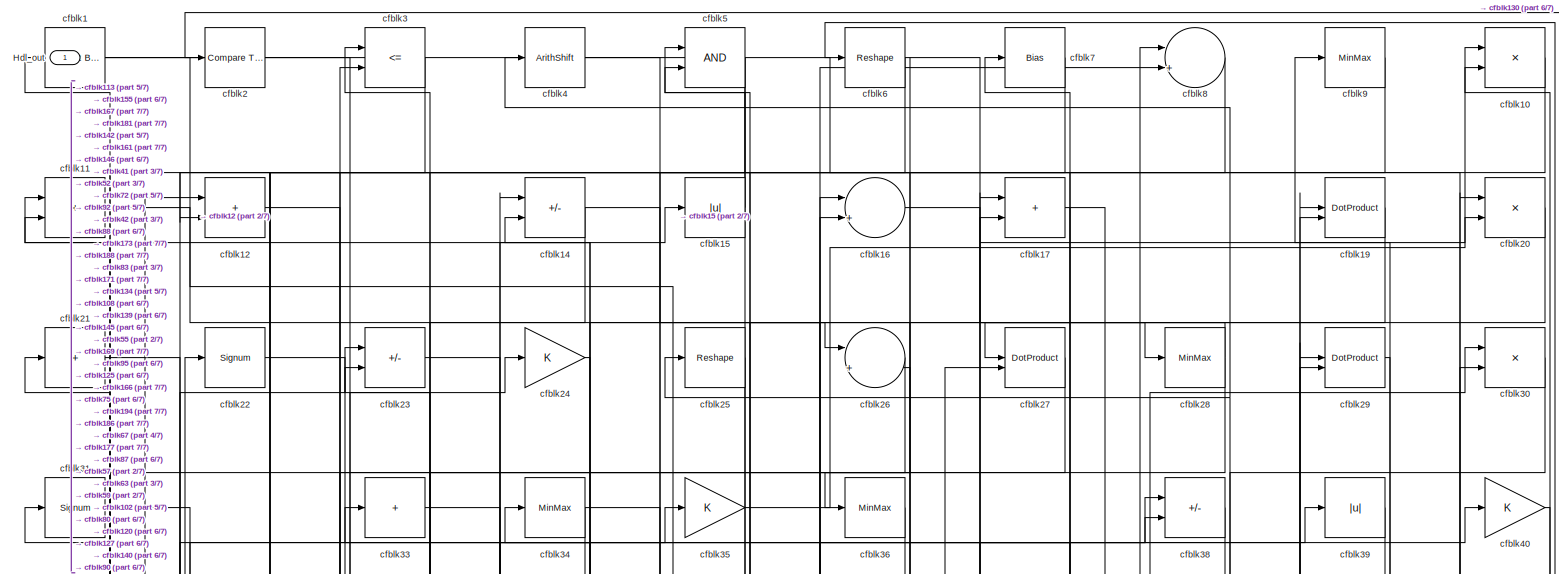
[diagram: root canvas - part 1/7, full width, top band]
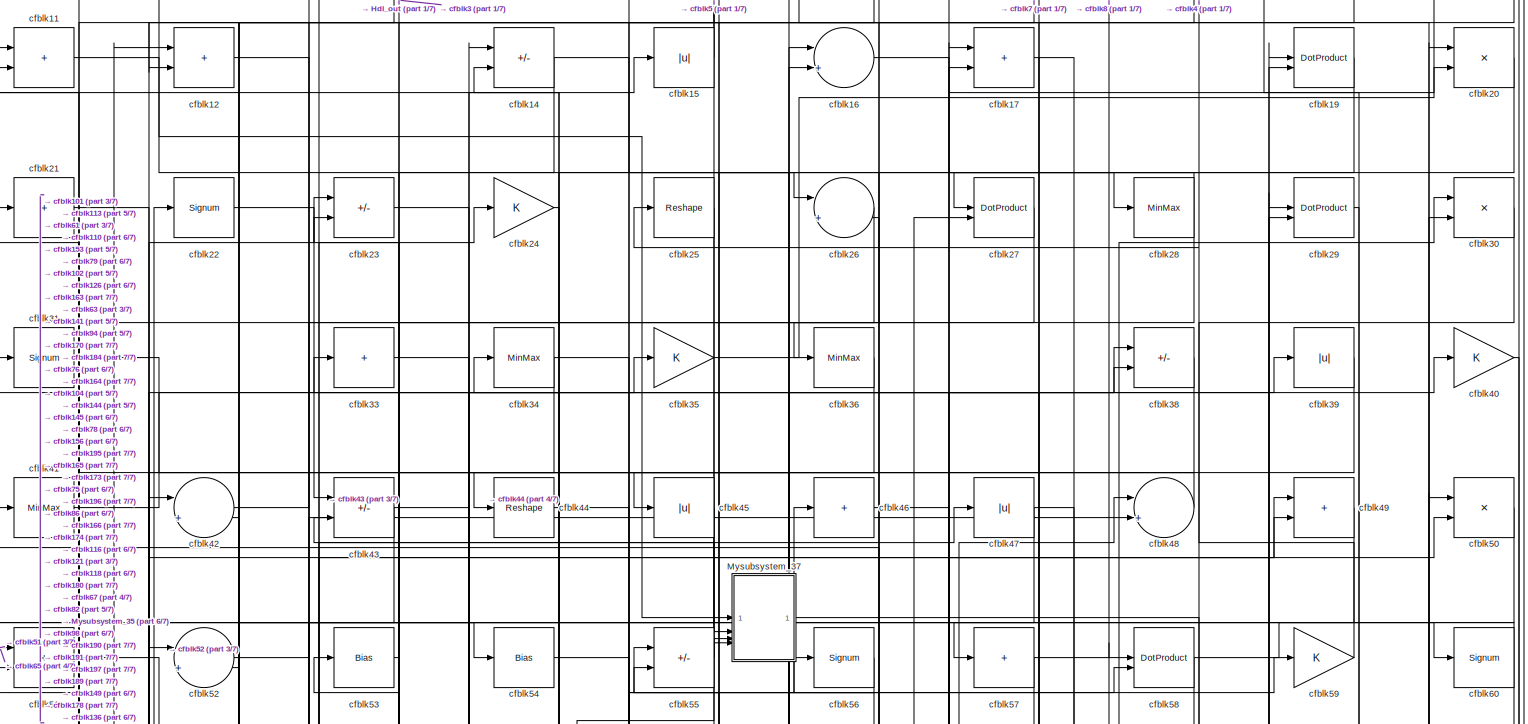
[diagram: root canvas - part 2/7, full width, top band]
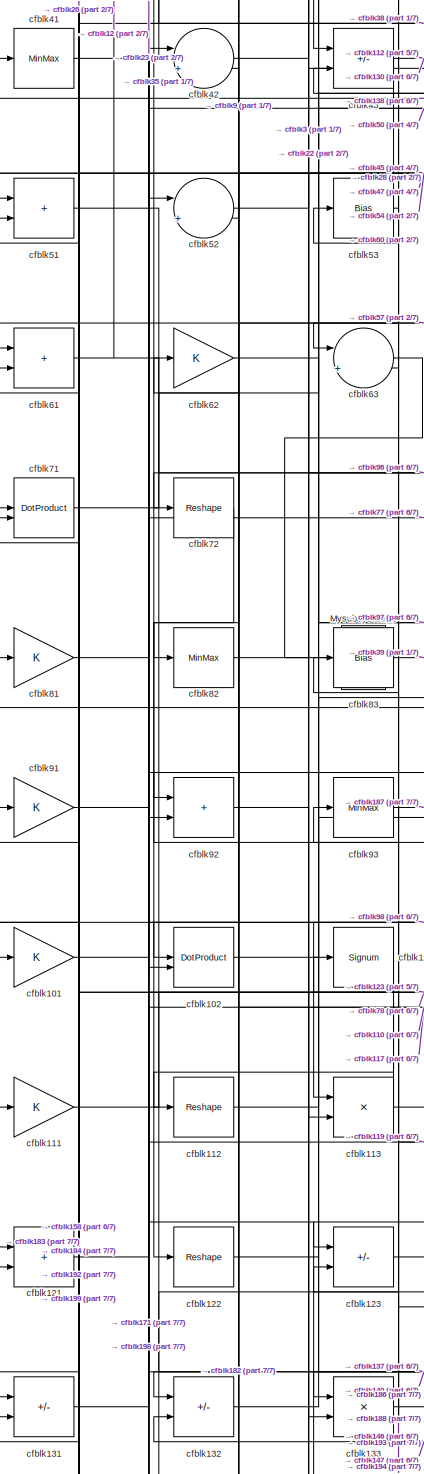
[diagram: root canvas - part 3/7, middle left region]
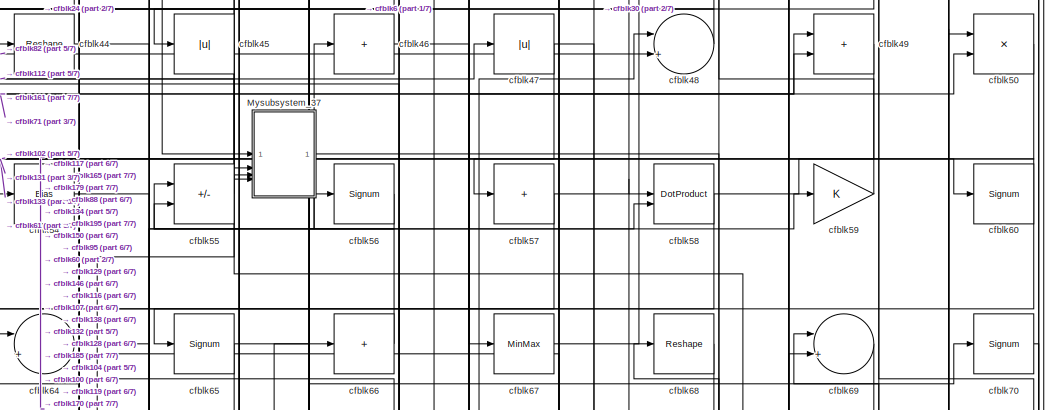
[diagram: root canvas - part 4/7, top center region]
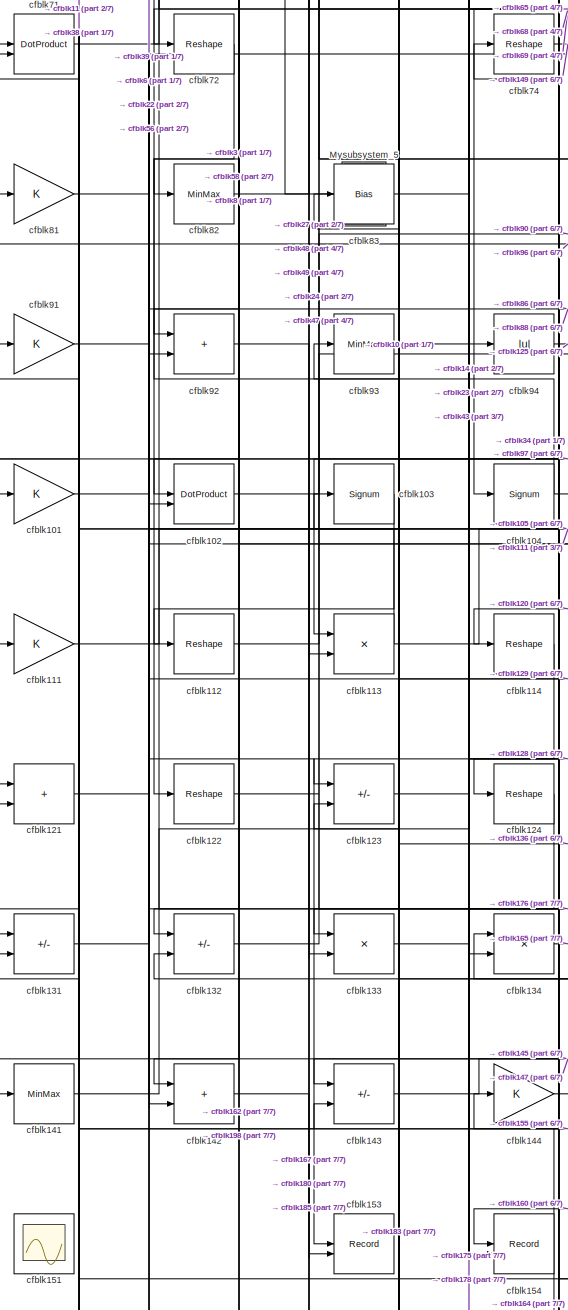
[diagram: root canvas - part 5/7, middle left region]
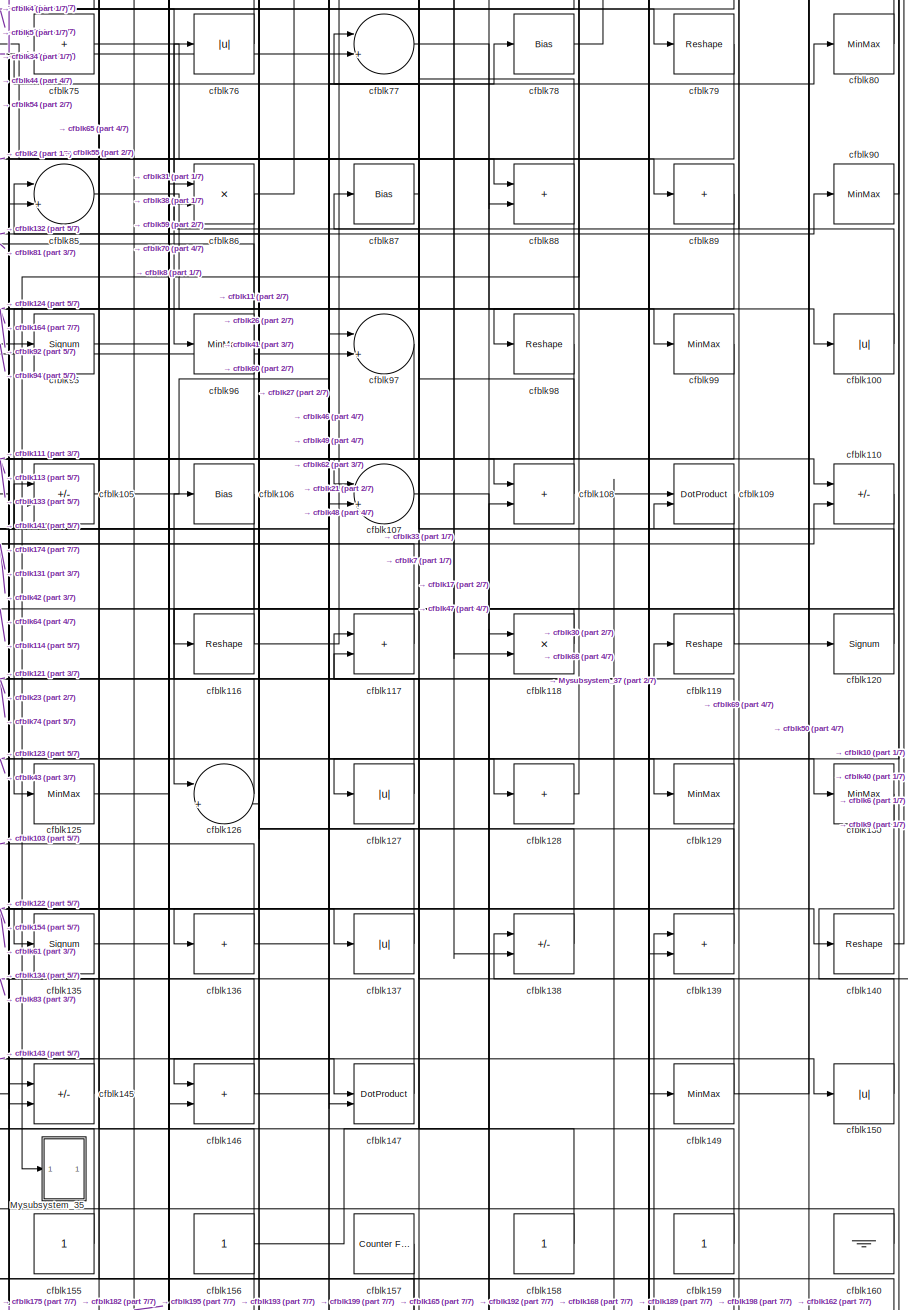
[diagram: root canvas - part 6/7, middle right region]
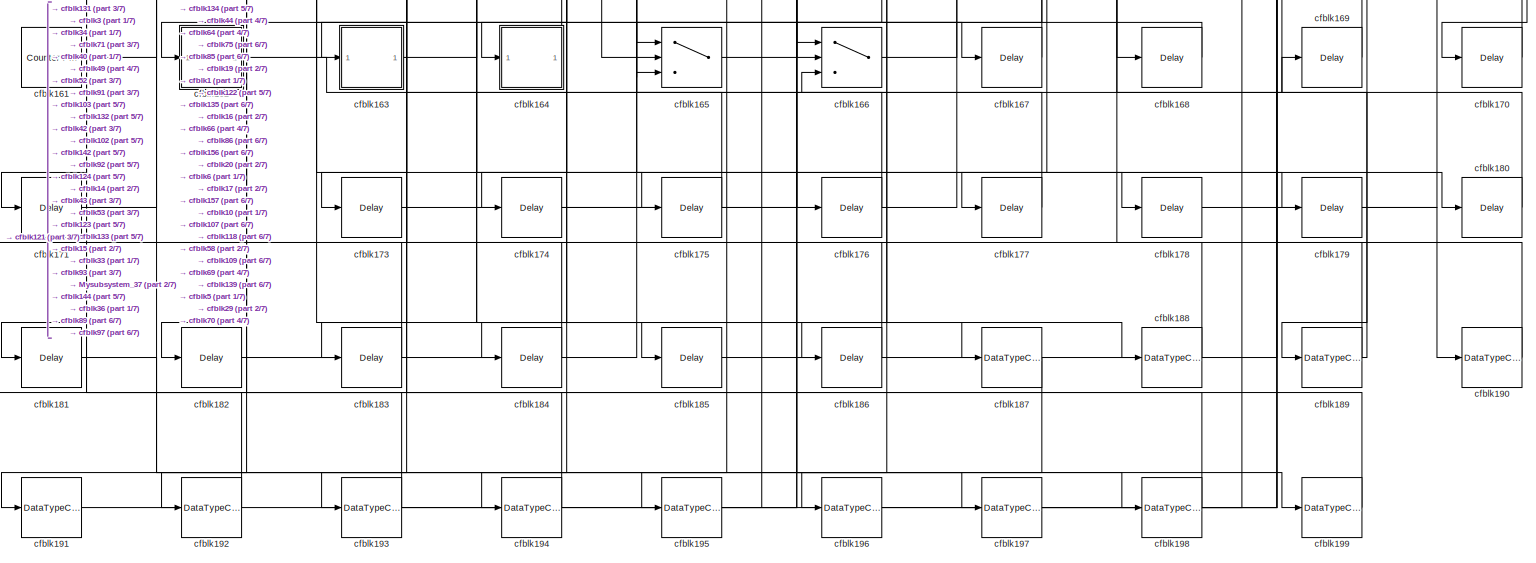
[diagram: root canvas - part 7/7, full width, bottom band]
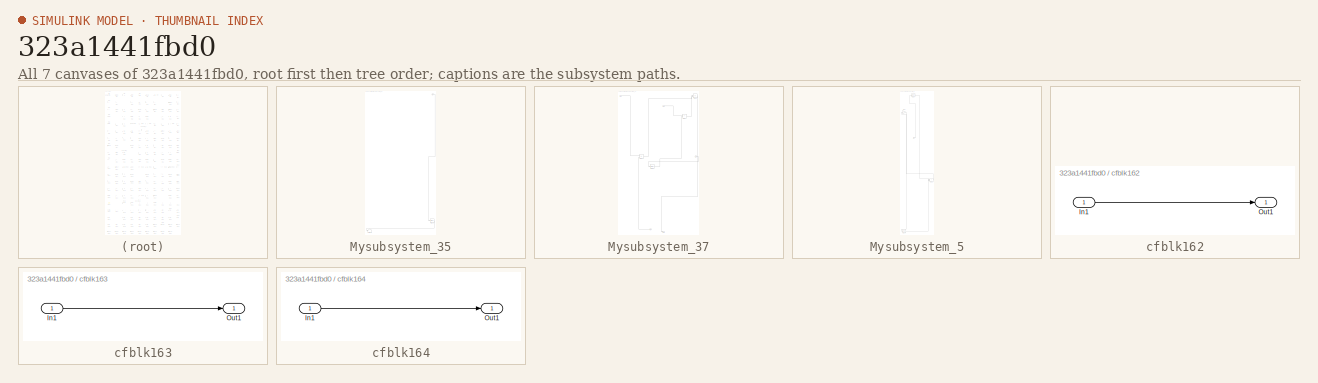
[diagram: thumbnail index - all 7 canvases of the model, root first then tree order]
MODEL slx_323a1441fbd0
KIND model
CONFIG AbsTol = auto
CONFIG EnableMultiTasking = off
CONFIG FixedStep = auto
CONFIG MaxStep = auto
CONFIG MinStep = auto
CONFIG RelTol = 1e-3
CONFIG SampleTimeConstraint = Unconstrained
CONFIG SolverName = VariableStepAuto
CONFIG StartTime = 0.0
CONFIG StopTime = 10.0
BLOCK [Outport] Hdl_out
  OutDataTypeStr = uint8
BLOCK [SubSystem] Mysubsystem_35
  RTWFcnName = Mysubsystem_35
  RTWFcnNameOpts = User specified
  RTWFileNameOpts = Use function name
  RTWSystemCode = Reusable function
  TreatAsAtomicUnit = on
BLOCK [Inport] Mysubsystem_35/In1
BLOCK [MinMax] Mysubsystem_35/cfblk148
BLOCK [Terminator] Mysubsystem_35/cfblk152
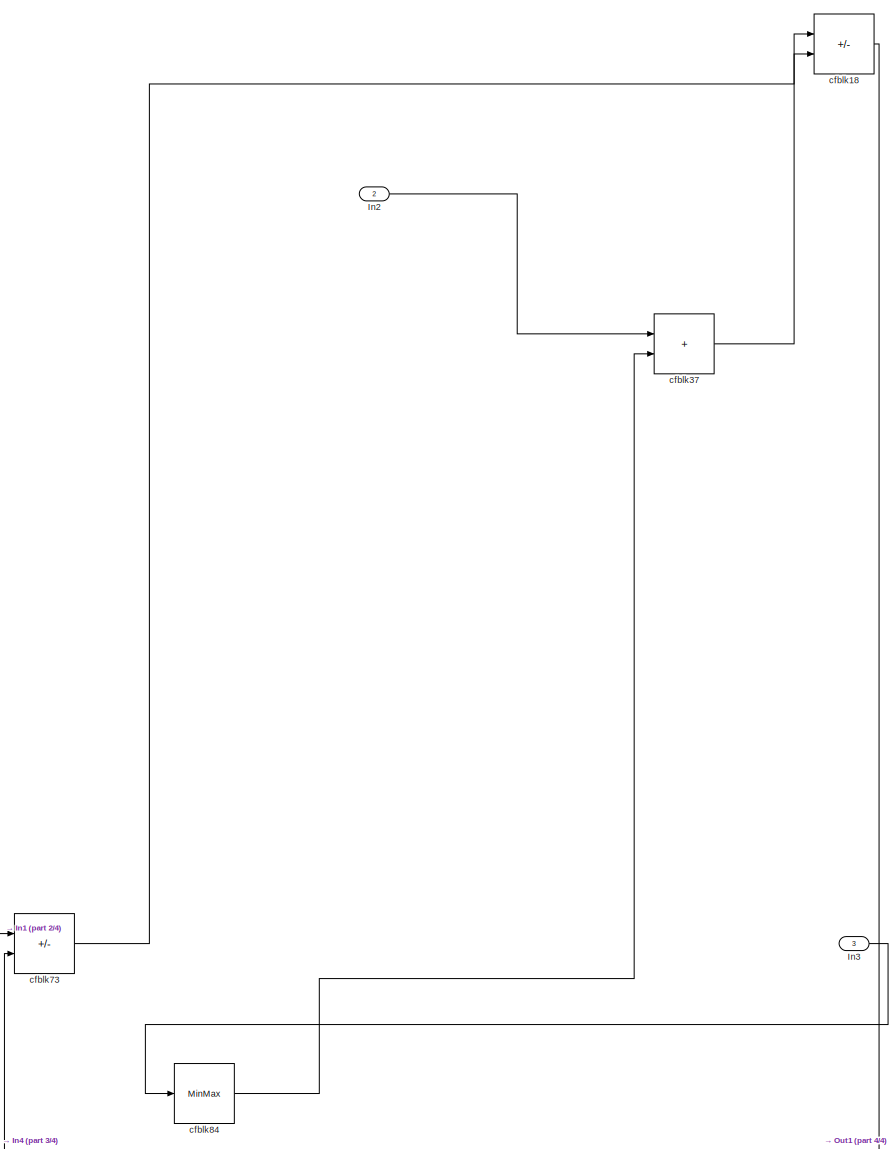
[diagram: Mysubsystem_37 - part 1/4, full width, top band]
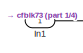
[diagram: Mysubsystem_37 - part 2/4, top left region]
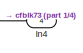
[diagram: Mysubsystem_37 - part 3/4, bottom center region]
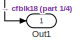
[diagram: Mysubsystem_37 - part 4/4, bottom center region]
BLOCK [SubSystem] Mysubsystem_37
  RTWFcnName = Mysubsystem_37
  RTWFcnNameOpts = User specified
  RTWFileNameOpts = Use function name
  RTWSystemCode = Reusable function
  TreatAsAtomicUnit = on
BLOCK [Inport] Mysubsystem_37/In1
BLOCK [Inport] Mysubsystem_37/In2
  Port = 2
BLOCK [Inport] Mysubsystem_37/In3
  Port = 3
BLOCK [Inport] Mysubsystem_37/In4
  Port = 4
BLOCK [Outport] Mysubsystem_37/Out1
BLOCK [Sum] Mysubsystem_37/cfblk18
  IconShape = rectangular
  Inputs = +-
BLOCK [Sum] Mysubsystem_37/cfblk37
  IconShape = rectangular
BLOCK [Sum] Mysubsystem_37/cfblk73
  IconShape = rectangular
  Inputs = +-
BLOCK [MinMax] Mysubsystem_37/cfblk84
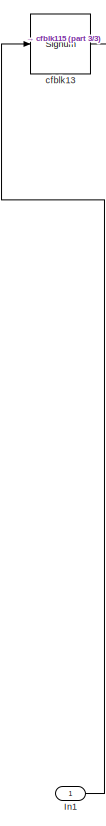
[diagram: Mysubsystem_5 - part 1/3, top center region]
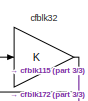
[diagram: Mysubsystem_5 - part 2/3, top left region]
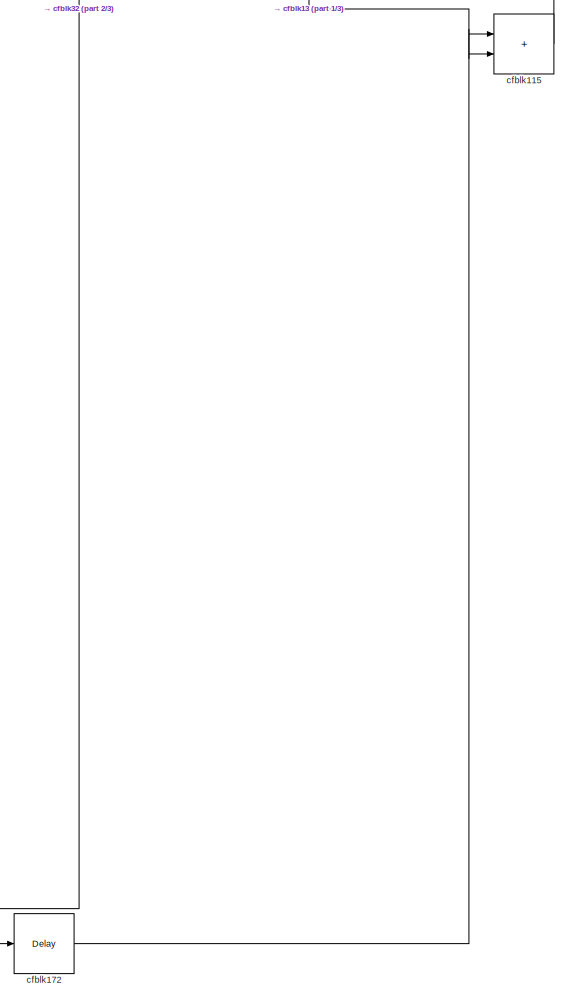
[diagram: Mysubsystem_5 - part 3/3, full width, bottom band]
BLOCK [SubSystem] Mysubsystem_5
  RTWFcnName = Mysubsystem_5
  RTWFcnNameOpts = User specified
  RTWFileNameOpts = Use function name
  RTWSystemCode = Reusable function
  TreatAsAtomicUnit = on
BLOCK [Inport] Mysubsystem_5/In1
BLOCK [Sum] Mysubsystem_5/cfblk115
  IconShape = rectangular
BLOCK [Signum] Mysubsystem_5/cfblk13
BLOCK [Delay] Mysubsystem_5/cfblk172
  InputPortMap = u0
  SampleTime = 1
BLOCK [Gain] Mysubsystem_5/cfblk32
BLOCK [Reference] cfblk1  REF=simulink/Logic and Bit
Operations/Extract Bits
  LibrarySourceBlock = hdlsllib/Logic and Bit\nOperations/Extract Bits
  SourceBlock = simulink/Logic and Bit\nOperations/Extract Bits
  SourceType = Extract Bits
BLOCK [Product] cfblk10
  Inputs = */
  OutDataTypeStr = uint8
  RndMeth = Zero
  SaturateOnIntegerOverflow = on
BLOCK [Abs] cfblk100
  OutDataTypeStr = uint8
  SaturateOnIntegerOverflow = off
BLOCK [Gain] cfblk101
  OutDataTypeStr = uint8
BLOCK [DotProduct] cfblk102
  OutDataTypeStr = uint8
BLOCK [Signum] cfblk103
BLOCK [Signum] cfblk104
BLOCK [Sum] cfblk105
  IconShape = rectangular
  Inputs = +-
  OutDataTypeStr = uint8
BLOCK [Bias] cfblk106
  Bias = 0.0
  SaturateOnIntegerOverflow = off
BLOCK [Sum] cfblk107
  Inputs = |++
  OutDataTypeStr = uint8
BLOCK [Sum] cfblk108
  IconShape = rectangular
  OutDataTypeStr = uint8
BLOCK [DotProduct] cfblk109
  OutDataTypeStr = uint8
BLOCK [Sum] cfblk11
  IconShape = rectangular
  OutDataTypeStr = uint8
BLOCK [Sum] cfblk110
  IconShape = rectangular
  Inputs = +-
  OutDataTypeStr = uint8
BLOCK [Gain] cfblk111
  OutDataTypeStr = uint8
BLOCK [Reshape] cfblk112
BLOCK [Product] cfblk113
  Inputs = */
  OutDataTypeStr = uint8
  RndMeth = Zero
  SaturateOnIntegerOverflow = on
BLOCK [Reshape] cfblk114
BLOCK [Reshape] cfblk116
BLOCK [Sum] cfblk117
  IconShape = rectangular
  OutDataTypeStr = uint8
BLOCK [Product] cfblk118
  Inputs = */
  OutDataTypeStr = uint8
  RndMeth = Zero
  SaturateOnIntegerOverflow = on
BLOCK [Reshape] cfblk119
BLOCK [Sum] cfblk12
  IconShape = rectangular
  OutDataTypeStr = uint8
BLOCK [Signum] cfblk120
BLOCK [Sum] cfblk121
  IconShape = rectangular
  OutDataTypeStr = uint8
BLOCK [Reshape] cfblk122
BLOCK [Sum] cfblk123
  IconShape = rectangular
  Inputs = +-
  OutDataTypeStr = uint8
BLOCK [Reshape] cfblk124
BLOCK [MinMax] cfblk125
  OutDataTypeStr = uint8
BLOCK [Sum] cfblk126
  Inputs = |++
  OutDataTypeStr = uint8
BLOCK [Abs] cfblk127
  OutDataTypeStr = uint8
  SaturateOnIntegerOverflow = off
BLOCK [Sum] cfblk128
  IconShape = rectangular
  Inputs = +
  OutDataTypeStr = uint8
BLOCK [MinMax] cfblk129
  OutDataTypeStr = uint8
BLOCK [MinMax] cfblk130
  OutDataTypeStr = uint8
BLOCK [Sum] cfblk131
  IconShape = rectangular
  Inputs = +-
  OutDataTypeStr = uint8
BLOCK [Sum] cfblk132
  IconShape = rectangular
  Inputs = +-
  OutDataTypeStr = uint8
BLOCK [Product] cfblk133
  Inputs = */
  OutDataTypeStr = uint8
  RndMeth = Zero
  SaturateOnIntegerOverflow = on
BLOCK [Product] cfblk134
  Inputs = */
  OutDataTypeStr = uint8
  RndMeth = Zero
  SaturateOnIntegerOverflow = on
BLOCK [Signum] cfblk135
BLOCK [Sum] cfblk136
  IconShape = rectangular
  Inputs = +
  OutDataTypeStr = uint8
BLOCK [Abs] cfblk137
  OutDataTypeStr = uint8
  SaturateOnIntegerOverflow = off
BLOCK [Sum] cfblk138
  IconShape = rectangular
  Inputs = +-
  OutDataTypeStr = uint8
BLOCK [Sum] cfblk139
  IconShape = rectangular
  OutDataTypeStr = uint8
BLOCK [Sum] cfblk14
  IconShape = rectangular
  Inputs = +-
  OutDataTypeStr = uint8
BLOCK [Reshape] cfblk140
BLOCK [MinMax] cfblk141
  OutDataTypeStr = uint8
BLOCK [Sum] cfblk142
  IconShape = rectangular
  OutDataTypeStr = uint8
BLOCK [Sum] cfblk143
  IconShape = rectangular
  Inputs = +-
  OutDataTypeStr = uint8
BLOCK [Gain] cfblk144
  OutDataTypeStr = uint8
BLOCK [Sum] cfblk145
  IconShape = rectangular
  Inputs = +-
  OutDataTypeStr = uint8
BLOCK [Sum] cfblk146
  IconShape = rectangular
  OutDataTypeStr = uint8
BLOCK [DotProduct] cfblk147
  OutDataTypeStr = uint8
BLOCK [MinMax] cfblk149
  OutDataTypeStr = uint8
BLOCK [Abs] cfblk15
  OutDataTypeStr = uint8
  SaturateOnIntegerOverflow = off
BLOCK [Abs] cfblk150
  OutDataTypeStr = uint8
  SaturateOnIntegerOverflow = off
BLOCK [Scope] cfblk151
  Floating = on
  NumInputPorts = 1
  ScopeSpecificationString = Simulink.scopes.TimeScopeBlockCfg('CurrentConfiguration', extmgr.ConfigurationSet(extmgr.Configuration('Core','General UI',true,'FigureColor',[0.156862745098039 0.156862745098039 0.156862745098039]),extmgr.Configuration('Core','Source UI',true),extmgr.Configuration('Sources','WiredSimulink',true,'DataLoggingVariableName','ScopeData1','DataLoggingSaveFormat','StructureWithTime','DataLoggingLimitDat...<+2713ch>
BLOCK [Record] cfblk153
  CompatibilityTag = XY
  FileSettingsInternal = {"entries":[{"content":{"excelSettings":{"content":{},"type":"Streamout.ExcelSettings"}},"type":"Streamout.FileSettingStorage","uuid":""}],"packageUris":["http:\/\/schema.mathworks.com\/mf0\/streamout_blocks\/R2020a"],"version":"1.0"}
  Layout = [1 1]
  SignalsInternal = {"entries":[{"content":{"signals":[{"content":{"blockPath":[],"dimensions":[1],"domain":"","lineColor":"#a2142f","plots":[1],"port":1,"signalID":23088,"signalName":"cfblk114"},"type":"RecordBlkView.Signal","uuid":""},{"content":{"blockPath":[],"dimensions":[1],"domain":"","lineColor":"#139fff","plots":[1],"port":2,"signalID":23091,"signalName":"cfblk27"},"type":"RecordBlkView.Signal","uuid":""}]},...<+143ch>
  VisualizationBindings = {"xyplotplugin":{"info":[{"series":[{"bindingParametersList":[{"parameter":"X-Axis","signalID":23088,"signalName":"cfblk114"},{"parameter":"Y-Axis","signalID":23091,"signalName":"cfblk27"}],"seriesID":1655}],"subplotID":1}]}}
  st = -1
BLOCK [Record] cfblk154
  CompatibilityTag = XY
  FileSettingsInternal = {"entries":[{"content":{"excelSettings":{"content":{},"type":"Streamout.ExcelSettings"}},"type":"Streamout.FileSettingStorage","uuid":""}],"packageUris":["http:\/\/schema.mathworks.com\/mf0\/streamout_blocks\/R2020a"],"version":"1.0"}
  Layout = [1 1]
  SignalsInternal = {"entries":[{"content":{"signals":[{"content":{"blockPath":[],"dimensions":[1],"domain":"","lineColor":"#a2142f","plots":[1],"port":1,"signalID":23080,"signalName":"cfblk160"},"type":"RecordBlkView.Signal","uuid":""},{"content":{"blockPath":[],"dimensions":[1],"domain":"","lineColor":"#139fff","plots":[1],"port":2,"signalID":23083,"signalName":"cfblk129"},"type":"RecordBlkView.Signal","uuid":""}]}...<+144ch>
  VisualizationBindings = {"xyplotplugin":{"info":[{"series":[{"bindingParametersList":[{"parameter":"X-Axis","signalID":23080,"signalName":"cfblk160"},{"parameter":"Y-Axis","signalID":23083,"signalName":"cfblk129"}],"seriesID":2661}],"subplotID":1}]}}
  st = -1
BLOCK [Constant] cfblk155
  OutDataTypeStr = uint8
  SampleTime = -1
BLOCK [Constant] cfblk156
  OutDataTypeStr = uint8
  SampleTime = -1
BLOCK [Reference] cfblk157  REF=hdlsllib/Sources/Counter
Free-Running
  SourceBlock = hdlsllib/Sources/Counter\nFree-Running
  SourceType = Counter Free-Running
BLOCK [Constant] cfblk158
  OutDataTypeStr = uint8
  SampleTime = -1
BLOCK [Constant] cfblk159
  OutDataTypeStr = uint8
  SampleTime = -1
BLOCK [Sum] cfblk16
  Inputs = |++
  OutDataTypeStr = uint8
BLOCK [Ground] cfblk160
BLOCK [Reference] cfblk161  REF=hdlsllib/Sources/Counter
Free-Running
  SourceBlock = hdlsllib/Sources/Counter\nFree-Running
  SourceType = Counter Free-Running
BLOCK [SubSystem] cfblk162
  LibrarySourceBlock = hdlsllib/Ports &\nSubsystems/Subsystem
BLOCK [Inport] cfblk162/In1
BLOCK [Outport] cfblk162/Out1
BLOCK [SubSystem] cfblk163
  LibrarySourceBlock = hdlsllib/Ports &\nSubsystems/Subsystem
BLOCK [Inport] cfblk163/In1
BLOCK [Outport] cfblk163/Out1
BLOCK [SubSystem] cfblk164
  LibrarySourceBlock = hdlsllib/Ports &\nSubsystems/Subsystem
BLOCK [Inport] cfblk164/In1
BLOCK [Outport] cfblk164/Out1
BLOCK [Switch] cfblk165
  InputSameDT = off
  OutDataTypeStr = uint8
  SaturateOnIntegerOverflow = off
BLOCK [Switch] cfblk166
  InputSameDT = off
  OutDataTypeStr = uint8
  SaturateOnIntegerOverflow = off
BLOCK [Delay] cfblk167
  InputPortMap = u0
  SampleTime = 1
BLOCK [Delay] cfblk168
  InputPortMap = u0
  SampleTime = 1
BLOCK [Delay] cfblk169
  InputPortMap = u0
  SampleTime = 1
BLOCK [Sum] cfblk17
  IconShape = rectangular
  OutDataTypeStr = uint8
BLOCK [Delay] cfblk170
  InputPortMap = u0
  SampleTime = 1
BLOCK [Delay] cfblk171
  InputPortMap = u0
  SampleTime = 1
BLOCK [Delay] cfblk173
  InputPortMap = u0
  SampleTime = 1
BLOCK [Delay] cfblk174
  InputPortMap = u0
  SampleTime = 1
BLOCK [Delay] cfblk175
  InputPortMap = u0
  SampleTime = 1
BLOCK [Delay] cfblk176
  InputPortMap = u0
  SampleTime = 1
BLOCK [Delay] cfblk177
  InputPortMap = u0
  SampleTime = 1
BLOCK [Delay] cfblk178
  InputPortMap = u0
  SampleTime = 1
BLOCK [Delay] cfblk179
  InputPortMap = u0
  SampleTime = 1
BLOCK [Delay] cfblk180
  InputPortMap = u0
  SampleTime = 1
BLOCK [Delay] cfblk181
  InputPortMap = u0
  SampleTime = 1
BLOCK [Delay] cfblk182
  InputPortMap = u0
  SampleTime = 1
BLOCK [Delay] cfblk183
  InputPortMap = u0
  SampleTime = 1
BLOCK [Delay] cfblk184
  InputPortMap = u0
  SampleTime = 1
BLOCK [Delay] cfblk185
  InputPortMap = u0
  SampleTime = 1
BLOCK [Delay] cfblk186
  InputPortMap = u0
  SampleTime = 1
BLOCK [DataTypeConversion] cfblk187
  OutDataTypeStr = uint8
  RndMeth = Floor
  SaturateOnIntegerOverflow = off
BLOCK [DataTypeConversion] cfblk188
  OutDataTypeStr = uint8
  RndMeth = Floor
  SaturateOnIntegerOverflow = off
BLOCK [DataTypeConversion] cfblk189
  OutDataTypeStr = uint8
  RndMeth = Floor
  SaturateOnIntegerOverflow = off
BLOCK [DotProduct] cfblk19
  OutDataTypeStr = uint8
BLOCK [DataTypeConversion] cfblk190
  OutDataTypeStr = uint8
  RndMeth = Floor
  SaturateOnIntegerOverflow = off
BLOCK [DataTypeConversion] cfblk191
  OutDataTypeStr = uint8
  RndMeth = Floor
  SaturateOnIntegerOverflow = off
BLOCK [DataTypeConversion] cfblk192
  OutDataTypeStr = uint8
  RndMeth = Floor
  SaturateOnIntegerOverflow = off
BLOCK [DataTypeConversion] cfblk193
  OutDataTypeStr = uint8
  RndMeth = Floor
  SaturateOnIntegerOverflow = off
BLOCK [DataTypeConversion] cfblk194
  OutDataTypeStr = uint8
  RndMeth = Floor
  SaturateOnIntegerOverflow = off
BLOCK [DataTypeConversion] cfblk195
  OutDataTypeStr = uint8
  RndMeth = Floor
  SaturateOnIntegerOverflow = off
BLOCK [DataTypeConversion] cfblk196
  OutDataTypeStr = uint8
  RndMeth = Floor
  SaturateOnIntegerOverflow = off
BLOCK [DataTypeConversion] cfblk197
  OutDataTypeStr = uint8
  RndMeth = Floor
  SaturateOnIntegerOverflow = off
BLOCK [DataTypeConversion] cfblk198
  OutDataTypeStr = uint8
  RndMeth = Floor
  SaturateOnIntegerOverflow = off
BLOCK [DataTypeConversion] cfblk199
  OutDataTypeStr = uint8
  RndMeth = Floor
  SaturateOnIntegerOverflow = off
BLOCK [Reference] cfblk2  REF=hdlsllib/Logic and Bit
Operations/Compare
To Zero
  SourceBlock = hdlsllib/Logic and Bit\nOperations/Compare\nTo Zero
  SourceType = Compare To Zero
BLOCK [Product] cfblk20
  Inputs = */
  OutDataTypeStr = uint8
  RndMeth = Zero
  SaturateOnIntegerOverflow = on
BLOCK [Sum] cfblk21
  IconShape = rectangular
  Inputs = +
  OutDataTypeStr = uint8
BLOCK [Signum] cfblk22
BLOCK [Sum] cfblk23
  IconShape = rectangular
  Inputs = +-
  OutDataTypeStr = uint8
BLOCK [Gain] cfblk24
  OutDataTypeStr = uint8
BLOCK [Reshape] cfblk25
BLOCK [Sum] cfblk26
  Inputs = |++
  OutDataTypeStr = uint8
BLOCK [DotProduct] cfblk27
  OutDataTypeStr = uint8
BLOCK [MinMax] cfblk28
  OutDataTypeStr = uint8
BLOCK [DotProduct] cfblk29
  OutDataTypeStr = uint8
BLOCK [RelationalOperator] cfblk3
  InputSameDT = off
  Operator = <=
  OutDataTypeStr = boolean
BLOCK [Product] cfblk30
  Inputs = */
  OutDataTypeStr = uint8
  RndMeth = Zero
  SaturateOnIntegerOverflow = on
BLOCK [Signum] cfblk31
BLOCK [Sum] cfblk33
  IconShape = rectangular
  Inputs = +
  OutDataTypeStr = uint8
BLOCK [MinMax] cfblk34
  OutDataTypeStr = uint8
BLOCK [Gain] cfblk35
  OutDataTypeStr = uint8
BLOCK [MinMax] cfblk36
  OutDataTypeStr = uint8
BLOCK [Sum] cfblk38
  IconShape = rectangular
  Inputs = +-
  OutDataTypeStr = uint8
BLOCK [Abs] cfblk39
  OutDataTypeStr = uint8
  SaturateOnIntegerOverflow = off
BLOCK [ArithShift] cfblk4
  BitShiftNumber = 8
  InputPortMap = u0
BLOCK [Gain] cfblk40
  OutDataTypeStr = uint8
BLOCK [MinMax] cfblk41
  OutDataTypeStr = uint8
BLOCK [Sum] cfblk42
  Inputs = |++
  OutDataTypeStr = uint8
BLOCK [Sum] cfblk43
  IconShape = rectangular
  Inputs = +-
  OutDataTypeStr = uint8
BLOCK [Reshape] cfblk44
BLOCK [Abs] cfblk45
  OutDataTypeStr = uint8
  SaturateOnIntegerOverflow = off
BLOCK [Sum] cfblk46
  IconShape = rectangular
  Inputs = +
  OutDataTypeStr = uint8
BLOCK [Abs] cfblk47
  OutDataTypeStr = uint8
  SaturateOnIntegerOverflow = off
BLOCK [Sum] cfblk48
  Inputs = |++
  OutDataTypeStr = uint8
BLOCK [Sum] cfblk49
  IconShape = rectangular
  OutDataTypeStr = uint8
BLOCK [Logic] cfblk5
  AllPortsSameDT = off
  OutDataTypeStr = boolean
BLOCK [Product] cfblk50
  Inputs = */
  OutDataTypeStr = uint8
  RndMeth = Zero
  SaturateOnIntegerOverflow = on
BLOCK [Sum] cfblk51
  IconShape = rectangular
  OutDataTypeStr = uint8
BLOCK [Sum] cfblk52
  Inputs = |++
  OutDataTypeStr = uint8
BLOCK [Bias] cfblk53
  Bias = 0.0
  SaturateOnIntegerOverflow = off
BLOCK [Bias] cfblk54
  Bias = 0.0
  SaturateOnIntegerOverflow = off
BLOCK [Sum] cfblk55
  IconShape = rectangular
  Inputs = +-
  OutDataTypeStr = uint8
BLOCK [Signum] cfblk56
BLOCK [Sum] cfblk57
  IconShape = rectangular
  Inputs = +
  OutDataTypeStr = uint8
BLOCK [DotProduct] cfblk58
  OutDataTypeStr = uint8
BLOCK [Gain] cfblk59
  OutDataTypeStr = uint8
BLOCK [Reshape] cfblk6
BLOCK [Signum] cfblk60
BLOCK [Sum] cfblk61
  IconShape = rectangular
  OutDataTypeStr = uint8
BLOCK [Gain] cfblk62
  OutDataTypeStr = uint8
BLOCK [Sum] cfblk63
  Inputs = |++
  OutDataTypeStr = uint8
BLOCK [Sum] cfblk64
  Inputs = |++
  OutDataTypeStr = uint8
BLOCK [Signum] cfblk65
BLOCK [Sum] cfblk66
  IconShape = rectangular
  Inputs = +
  OutDataTypeStr = uint8
BLOCK [MinMax] cfblk67
  OutDataTypeStr = uint8
BLOCK [Reshape] cfblk68
BLOCK [Sum] cfblk69
  Inputs = |++
  OutDataTypeStr = uint8
BLOCK [Bias] cfblk7
  Bias = 0.0
  SaturateOnIntegerOverflow = off
BLOCK [Signum] cfblk70
BLOCK [DotProduct] cfblk71
  OutDataTypeStr = uint8
BLOCK [Reshape] cfblk72
BLOCK [Reshape] cfblk74
BLOCK [Sum] cfblk75
  IconShape = rectangular
  OutDataTypeStr = uint8
BLOCK [Abs] cfblk76
  OutDataTypeStr = uint8
  SaturateOnIntegerOverflow = off
BLOCK [Sum] cfblk77
  Inputs = |++
  OutDataTypeStr = uint8
BLOCK [Bias] cfblk78
  Bias = 0.0
  SaturateOnIntegerOverflow = off
BLOCK [Reshape] cfblk79
BLOCK [Sum] cfblk8
  Inputs = |++
  OutDataTypeStr = uint8
BLOCK [MinMax] cfblk80
  OutDataTypeStr = uint8
BLOCK [Gain] cfblk81
  OutDataTypeStr = uint8
BLOCK [MinMax] cfblk82
  OutDataTypeStr = uint8
BLOCK [Bias] cfblk83
  Bias = 0.0
  SaturateOnIntegerOverflow = off
BLOCK [Sum] cfblk85
  Inputs = |++
  OutDataTypeStr = uint8
BLOCK [Product] cfblk86
  Inputs = */
  OutDataTypeStr = uint8
  RndMeth = Zero
  SaturateOnIntegerOverflow = on
BLOCK [Bias] cfblk87
  Bias = 0.0
  SaturateOnIntegerOverflow = off
BLOCK [Sum] cfblk88
  IconShape = rectangular
  OutDataTypeStr = uint8
BLOCK [Sum] cfblk89
  IconShape = rectangular
  Inputs = +
  OutDataTypeStr = uint8
BLOCK [MinMax] cfblk9
  OutDataTypeStr = uint8
BLOCK [MinMax] cfblk90
  OutDataTypeStr = uint8
BLOCK [Gain] cfblk91
  OutDataTypeStr = uint8
BLOCK [Sum] cfblk92
  IconShape = rectangular
  OutDataTypeStr = uint8
BLOCK [MinMax] cfblk93
  OutDataTypeStr = uint8
BLOCK [Abs] cfblk94
  OutDataTypeStr = uint8
  SaturateOnIntegerOverflow = off
BLOCK [Signum] cfblk95
BLOCK [MinMax] cfblk96
  OutDataTypeStr = uint8
BLOCK [Sum] cfblk97
  Inputs = |++
  OutDataTypeStr = uint8
BLOCK [Reshape] cfblk98
BLOCK [MinMax] cfblk99
  OutDataTypeStr = uint8
LINE Mysubsystem_35/In1:1 -> Mysubsystem_35/cfblk148:1
LINE Mysubsystem_35/cfblk148:1 -> Mysubsystem_35/cfblk152:1
LINE Mysubsystem_37/In1:1 -> Mysubsystem_37/cfblk73:1
LINE Mysubsystem_37/In2:1 -> Mysubsystem_37/cfblk37:1
LINE Mysubsystem_37/In3:1 -> Mysubsystem_37/cfblk84:1
LINE Mysubsystem_37/In4:1 -> Mysubsystem_37/cfblk73:2
LINE Mysubsystem_37/cfblk18:1 -> Mysubsystem_37/Out1:1
LINE Mysubsystem_37/cfblk37:1 -> Mysubsystem_37/cfblk18:1
LINE Mysubsystem_37/cfblk73:1 -> Mysubsystem_37/cfblk18:2
LINE Mysubsystem_37/cfblk84:1 -> Mysubsystem_37/cfblk37:2
LINE Mysubsystem_37:1 -> Mysubsystem_35:1
LINE Mysubsystem_5/In1:1 -> Mysubsystem_5/cfblk13:1
LINE Mysubsystem_5/cfblk115:1 -> Mysubsystem_5/cfblk32:1
LINE Mysubsystem_5/cfblk13:1 -> Mysubsystem_5/cfblk115:2
LINE Mysubsystem_5/cfblk172:1 -> Mysubsystem_5/cfblk115:1
LINE Mysubsystem_5/cfblk32:1 -> Mysubsystem_5/cfblk172:1
NET cfblk100:1 -> cfblk69:1, cfblk76:1
LINE cfblk101:1 -> cfblk23:1
NET cfblk102:1 -> cfblk185:1, cfblk24:1
LINE cfblk103:1 -> cfblk162:1
NET cfblk104:1 -> cfblk22:1, cfblk56:1
LINE cfblk105:1 -> cfblk80:1
LINE cfblk106:1 -> cfblk135:1
LINE cfblk107:1 -> cfblk168:1
LINE cfblk108:1 -> cfblk87:1
LINE cfblk109:1 -> cfblk126:1
NET cfblk10:1 -> cfblk113:2, cfblk173:1, cfblk177:1, cfblk72:1
LINE cfblk110:1 -> cfblk126:2
NET cfblk111:1 -> cfblk123:1, cfblk78:1
LINE cfblk112:1 -> cfblk47:1
NET cfblk113:1 -> cfblk11:2, cfblk38:1
LINE cfblk114:1 -> cfblk153:1
NET cfblk116:1 -> cfblk21:1, cfblk48:1
NET cfblk117:1 -> cfblk42:2, cfblk64:1
LINE cfblk118:1 -> cfblk116:1
NET cfblk119:1 -> cfblk109:2, cfblk50:1, cfblk75:2
LINE cfblk11:1 -> Mysubsystem_37:1
NET cfblk120:1 -> cfblk114:1, cfblk33:1
LINE cfblk121:1 -> cfblk119:1
NET cfblk122:1 -> cfblk176:1, cfblk97:2
NET cfblk123:1 -> cfblk128:1, cfblk178:1
LINE cfblk124:1 -> cfblk183:1
LINE cfblk125:1 -> cfblk8:2
LINE cfblk126:1 -> cfblk23:2
LINE cfblk127:1 -> cfblk106:1
LINE cfblk128:1 -> cfblk68:1
NET cfblk129:1 -> cfblk154:2, cfblk74:1
LINE cfblk12:1 -> cfblk79:1
LINE cfblk130:1 -> cfblk2:1
NET cfblk131:1 -> cfblk110:2, cfblk51:2
LINE cfblk132:1 -> cfblk90:1
LINE cfblk133:1 -> cfblk175:1
NET cfblk134:1 -> cfblk165:2, cfblk34:1
LINE cfblk135:1 -> cfblk199:1
NET cfblk136:1 -> cfblk103:1, cfblk107:2
LINE cfblk137:1 -> cfblk105:1
LINE cfblk138:1 -> cfblk41:1
LINE cfblk139:1 -> cfblk85:1
LINE cfblk140:1 -> cfblk6:1
NET cfblk141:1 -> cfblk105:2, cfblk14:1
LINE cfblk142:1 -> cfblk167:1
LINE cfblk143:1 -> cfblk147:1
LINE cfblk144:1 -> cfblk58:2
NET cfblk145:1 -> cfblk134:1, cfblk143:1
NET cfblk146:1 -> cfblk49:1, cfblk62:1
LINE cfblk147:1 -> cfblk83:1
NET cfblk149:1 -> cfblk117:2, cfblk30:2
NET cfblk14:1 -> cfblk163:1, cfblk26:1
LINE cfblk150:1 -> cfblk138:1
NET cfblk155:1 -> cfblk143:2, cfblk31:1
NET cfblk156:1 -> cfblk108:2, cfblk165:3, cfblk55:1
LINE cfblk157:1 -> cfblk192:1
NET cfblk158:1 -> cfblk117:1, cfblk61:1
LINE cfblk159:1 -> cfblk77:1
LINE cfblk15:1 -> cfblk5:1
LINE cfblk160:1 -> cfblk154:1
NET cfblk161:1 -> cfblk40:1, cfblk49:2
LINE cfblk162/In1:1 -> cfblk162/Out1:1
LINE cfblk162:1 -> cfblk139:1
LINE cfblk163/In1:1 -> cfblk163/Out1:1
LINE cfblk163:1 -> cfblk15:1
LINE cfblk164/In1:1 -> cfblk164/Out1:1
NET cfblk164:1 -> Mysubsystem_37:4, cfblk144:1
LINE cfblk165:1 -> cfblk16:1
LINE cfblk166:1 -> cfblk17:2
LINE cfblk167:1 -> cfblk1:1
LINE cfblk168:1 -> cfblk166:2
LINE cfblk169:1 -> cfblk5:2
NET cfblk16:1 -> cfblk20:2, cfblk28:1
LINE cfblk170:1 -> cfblk14:2
LINE cfblk171:1 -> cfblk52:1
LINE cfblk173:1 -> cfblk16:2
LINE cfblk174:1 -> cfblk17:1
LINE cfblk175:1 -> cfblk75:1
LINE cfblk176:1 -> cfblk123:2
LINE cfblk177:1 -> cfblk166:3
LINE cfblk178:1 -> cfblk20:1
LINE cfblk179:1 -> cfblk190:1
NET cfblk17:1 -> cfblk118:2, cfblk57:1
LINE cfblk180:1 -> cfblk58:1
LINE cfblk181:1 -> cfblk197:1
LINE cfblk182:1 -> cfblk85:2
LINE cfblk183:1 -> cfblk121:1
LINE cfblk184:1 -> cfblk131:2
LINE cfblk185:1 -> cfblk69:2
LINE cfblk186:1 -> cfblk43:2
LINE cfblk187:1 -> cfblk191:1
LINE cfblk188:1 -> cfblk93:1
NET cfblk189:1 -> cfblk118:1, cfblk169:1
LINE cfblk190:1 -> cfblk29:1
LINE cfblk191:1 -> cfblk29:2
LINE cfblk192:1 -> cfblk71:2
NET cfblk193:1 -> cfblk71:1, cfblk86:2
LINE cfblk194:1 -> cfblk53:1
NET cfblk195:1 -> cfblk66:1, cfblk86:1
LINE cfblk196:1 -> cfblk19:1
LINE cfblk197:1 -> cfblk19:2
NET cfblk198:1 -> cfblk109:1, cfblk132:2
LINE cfblk199:1 -> cfblk91:1
LINE cfblk19:1 -> cfblk195:1
LINE cfblk1:1 -> cfblk166:1
NET cfblk20:1 -> cfblk184:1, cfblk196:1
LINE cfblk21:1 -> cfblk110:1
LINE cfblk22:1 -> cfblk43:1
LINE cfblk23:1 -> cfblk94:1
LINE cfblk24:1 -> cfblk44:1
LINE cfblk25:1 -> Mysubsystem_37:2
LINE cfblk26:1 -> cfblk101:1
LINE cfblk27:1 -> cfblk153:2
NET cfblk28:1 -> cfblk27:1, cfblk63:2
LINE cfblk29:1 -> cfblk189:1
LINE cfblk2:1 -> cfblk88:1
LINE cfblk30:1 -> cfblk98:1
LINE cfblk31:1 -> cfblk146:2
LINE cfblk33:1 -> cfblk188:1
NET cfblk34:1 -> cfblk108:1, cfblk171:1
LINE cfblk35:1 -> cfblk10:1
LINE cfblk36:1 -> cfblk194:1
LINE cfblk38:1 -> cfblk63:1
LINE cfblk39:1 -> cfblk102:2
NET cfblk3:1 -> cfblk181:1, cfblk92:1
LINE cfblk40:1 -> cfblk127:1
NET cfblk41:1 -> cfblk140:1, cfblk35:1
NET cfblk42:1 -> cfblk182:1, cfblk3:2
NET cfblk43:1 -> cfblk112:1, cfblk130:1
NET cfblk44:1 -> cfblk165:1, cfblk88:2
LINE cfblk45:1 -> cfblk61:2
LINE cfblk46:1 -> cfblk129:1
NET cfblk47:1 -> cfblk131:1, cfblk138:2
LINE cfblk48:1 -> cfblk45:1
NET cfblk49:1 -> cfblk102:1, cfblk133:2
LINE cfblk4:1 -> cfblk139:2
LINE cfblk50:1 -> cfblk107:1
LINE cfblk51:1 -> cfblk96:1
LINE cfblk52:1 -> cfblk54:1
LINE cfblk53:1 -> cfblk193:1
LINE cfblk54:1 -> cfblk145:1
NET cfblk55:1 -> Hdl_out:1, cfblk3:1
LINE cfblk56:1 -> cfblk55:2
NET cfblk57:1 -> cfblk121:2, cfblk8:1
NET cfblk58:1 -> cfblk60:1, cfblk82:1
NET cfblk59:1 -> cfblk25:1, cfblk4:1
NET cfblk5:1 -> cfblk120:1, cfblk145:2
NET cfblk60:1 -> cfblk136:1, cfblk51:1, cfblk65:1
NET cfblk61:1 -> cfblk12:1, cfblk137:1
LINE cfblk62:1 -> cfblk97:1
LINE cfblk63:1 -> Mysubsystem_5:1
LINE cfblk64:1 -> cfblk179:1
NET cfblk65:1 -> cfblk134:2, cfblk150:1
LINE cfblk66:1 -> cfblk46:1
LINE cfblk67:1 -> cfblk30:1
LINE cfblk68:1 -> cfblk132:1
LINE cfblk69:1 -> cfblk104:1
NET cfblk6:1 -> cfblk142:2, cfblk186:1, cfblk67:1
LINE cfblk70:1 -> cfblk170:1
NET cfblk71:1 -> cfblk50:2, cfblk77:2
LINE cfblk72:1 -> cfblk122:1
LINE cfblk74:1 -> cfblk149:1
NET cfblk75:1 -> cfblk38:2, cfblk59:1, cfblk89:1
LINE cfblk76:1 -> cfblk11:1
LINE cfblk77:1 -> cfblk99:1
LINE cfblk78:1 -> Mysubsystem_37:3
LINE cfblk79:1 -> cfblk146:1
NET cfblk7:1 -> cfblk12:2, cfblk36:1
LINE cfblk80:1 -> cfblk9:1
LINE cfblk81:1 -> cfblk42:1
LINE cfblk82:1 -> cfblk48:2
LINE cfblk83:1 -> cfblk39:1
LINE cfblk85:1 -> cfblk100:1
NET cfblk86:1 -> cfblk124:1, cfblk26:2, cfblk27:2
LINE cfblk87:1 -> cfblk7:1
NET cfblk88:1 -> cfblk64:2, cfblk92:2
LINE cfblk89:1 -> cfblk164:1
LINE cfblk8:1 -> cfblk142:1
LINE cfblk90:1 -> cfblk10:2
LINE cfblk91:1 -> cfblk198:1
LINE cfblk92:1 -> cfblk180:1
LINE cfblk93:1 -> cfblk187:1
LINE cfblk94:1 -> cfblk125:1
LINE cfblk95:1 -> cfblk70:1
NET cfblk96:1 -> cfblk113:1, cfblk141:1, cfblk81:1
NET cfblk97:1 -> cfblk133:1, cfblk174:1
LINE cfblk98:1 -> cfblk111:1
LINE cfblk99:1 -> cfblk147:2
NET cfblk9:1 -> cfblk52:2, cfblk95:1
note: NET lines group one-source signal fan-out (src -> all destinations, sorted); 1:1 wires keep LINE
